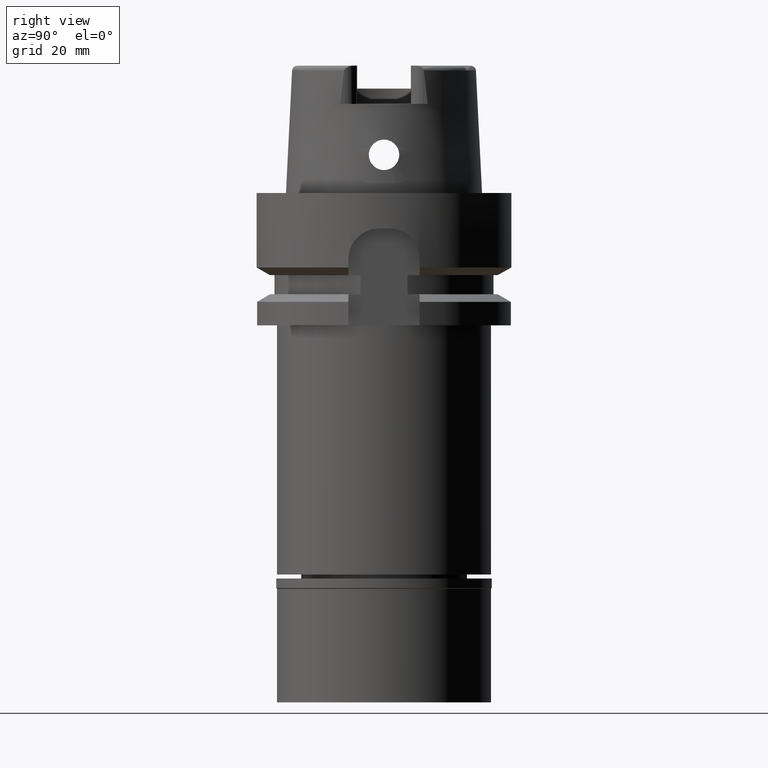
[diagram: clean part render]
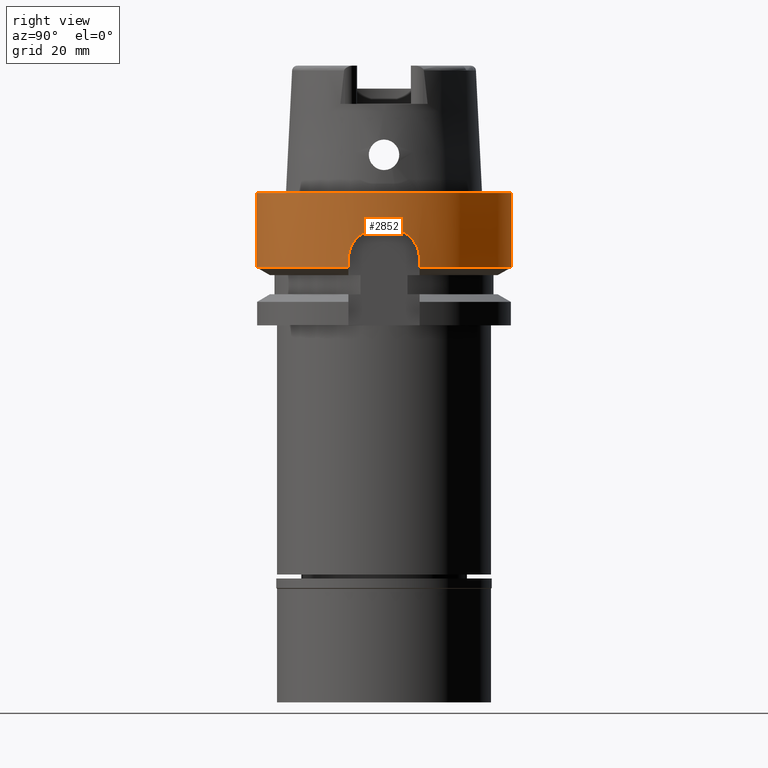
[diagram: same view with one face highlighted and labeled with its STEP entity id]
A machine part, right view. The second image highlights one B-rep face of the part: STEP entity #2852.
In plain terms, the highlighted cylindrical surface (partial cylindrical patch) has radius 25 mm, axis along (0, 0, 1).
Its self-contained STEP definition (entity closure, byte-faithful):
#19 = CARTESIAN_POINT ( 'NONE',  ( 24.00000000000000000, -7.000000000000000000, -13.00000000000000000 ) ) ;
#24 = CARTESIAN_POINT ( 'NONE',  ( 24.73294308576608813, 3.644859767167603959, -7.613589877150551466 ) ) ;
#53 = CARTESIAN_POINT ( 'NONE',  ( 24.10752801693980629, 6.620997962007402649, -10.90026572787551551 ) ) ;
#61 = CARTESIAN_POINT ( 'NONE',  ( 24.30529649366753375, -5.862537617366315068, -9.462845734824883337 ) ) ;
#77 = CARTESIAN_POINT ( 'NONE',  ( 24.58607127543462667, 4.529312725726160060, -8.147360616397545385 ) ) ;
#96 = VERTEX_POINT ( 'NONE', #3486 ) ;
#136 = ORIENTED_EDGE ( 'NONE', *, *, #2641, .F. ) ;
#146 = CARTESIAN_POINT ( 'NONE',  ( 0.0000000000000000000, 25.00000000000000000, -14.62250092523999889 ) ) ;
#155 = ORIENTED_EDGE ( 'NONE', *, *, #1759, .T. ) ;
#224 = DIRECTION ( 'NONE',  ( 0.0000000000000000000, -2.721175632404000057E-14, -1.000000000000000000 ) ) ;
#301 = DIRECTION ( 'NONE',  ( 0.9599999999999999645, 0.2800000000000000266, 0.0000000000000000000 ) ) ;
#372 = ORIENTED_EDGE ( 'NONE', *, *, #3256, .T. ) ;
#414 = CARTESIAN_POINT ( 'NONE',  ( 24.43460421793000137, 5.286843905560941970, -8.802015659606345466 ) ) ;
#440 = CARTESIAN_POINT ( 'NONE',  ( 24.61244496257783254, 4.384881170344420376, -8.045937147886396801 ) ) ;
#451 = CARTESIAN_POINT ( 'NONE',  ( 24.13159849589857942, -6.532380329975212341, -10.67773505898725261 ) ) ;
#472 = CARTESIAN_POINT ( 'NONE',  ( 24.77466861489971706, 3.348472716446429853, -7.478687897367121806 ) ) ;
#503 = VERTEX_POINT ( 'NONE', #1666 ) ;
#527 = CARTESIAN_POINT ( 'NONE',  ( 24.61678101106502226, 4.360561431086801498, -8.029423866194205672 ) ) ;
#548 = CARTESIAN_POINT ( 'NONE',  ( 0.0000000000000000000, 25.00000000000000000, 0.0000000000000000000 ) ) ;
#613 = ORIENTED_EDGE ( 'NONE', *, *, #3111, .T. ) ;
#685 = ORIENTED_EDGE ( 'NONE', *, *, #752, .F. ) ;
#714 = DIRECTION ( 'NONE',  ( 0.0000000000000000000, 0.0000000000000000000, 1.000000000000000000 ) ) ;
#752 = EDGE_CURVE ( 'NONE', #4087, #4905, #1287, .T. ) ;
#758 = CARTESIAN_POINT ( 'NONE',  ( 24.94185023558227599, -1.739811273116883772, -7.033056774439122805 ) ) ;
#797 = B_SPLINE_CURVE_WITH_KNOTS ( 'NONE', 3,
 ( #3763, #3344, #758, #3295, #861, #2891, #1203, #4588, #803, #5421, #3321, #2922, #5367, #4619, #2424, #4126, #2476, #833, #3685, #3791, #4210, #2534, #2096, #5467, #2870, #4183, #1683, #2952, #1989, #1573, #1791, #3493, #2240, #3938, #2682, #2620, #1763, #61, #5201, #891, #3821, #1737, #1010, #3011, #5095, #451, #2595, #4732, #2980, #3906, #3432, #5116 ),
 .UNSPECIFIED., .F., .F.,
 ( 4, 2, 2, 1, 1, 1, 2, 2, 2, 2, 1, 1, 1, 1, 2, 2, 2, 2, 2, 1, 1, 2, 2, 2, 2, 2, 1, 1, 1, 2, 2, 4 ),
 ( 0.0000000000000000000, 0.1250000000000014433, 0.1875000000000022204, 0.2187500000000025813, 0.2343750000000028588, 0.2421875000000029976, 0.2460937500000030531, 0.2500000000000031086, 0.3125000000000030531, 0.3437500000000030531, 0.3593750000000031086, 0.3671875000000029976, 0.3710937500000029976, 0.3730468750000029976, 0.3740234375000031641, 0.3750000000000033307, 0.4374999999999915623, 0.4687499999999856226, 0.4843749999999828471, 0.4921874999999814038, 0.4960937499999805156, 0.4980468749999802380, 0.4999999999999799050, 0.6249999999999581446, 0.6874999999999470424, 0.7187499999999416023, 0.7343749999999383826, 0.7421874999999368283, 0.7460937499999366063, 0.7480468749999368283, 0.7499999999999370504, 1.000000000000000000 ),
 .UNSPECIFIED. ) ;
#803 = CARTESIAN_POINT ( 'NONE',  ( 24.79500069949984464, -3.194305551462114590, -7.415539722165973124 ) ) ;
#823 = CARTESIAN_POINT ( 'NONE',  ( 24.43751223333812916, 5.273372890266226243, -8.788314004694974813 ) ) ;
#826 = VECTOR ( 'NONE', #224, 1000.000000000000000 ) ;
#833 = CARTESIAN_POINT ( 'NONE',  ( 24.65101416016376135, -4.163011647230068668, -7.900938413457483378 ) ) ;
#852 = CARTESIAN_POINT ( 'NONE',  ( 24.19606051178250539, 6.297238694292412120, -10.15515967838391198 ) ) ;
#861 = CARTESIAN_POINT ( 'NONE',  ( 24.87425935198875138, -2.506584891742007493, -7.188740180381780753 ) ) ;
#880 = CARTESIAN_POINT ( 'NONE',  ( 24.43634820577575439, 5.278767043177952090, -8.793794183290007282 ) ) ;
#891 = CARTESIAN_POINT ( 'NONE',  ( 24.20247363195075962, -6.268711443944487982, -10.12424634731129025 ) ) ;
#912 = CARTESIAN_POINT ( 'NONE',  ( 24.40662219008332201, 5.415271313888168514, -8.936539479565579924 ) ) ;
#939 = CARTESIAN_POINT ( 'NONE',  ( 24.61482510374747079, 4.371564182871710891, -8.036877273735983707 ) ) ;
#1010 = CARTESIAN_POINT ( 'NONE',  ( 24.14842663893804087, -6.470323879109859178, -10.53481904906633559 ) ) ;
#1063 = EDGE_CURVE ( 'NONE', #1197, #1855, #2577, .T. ) ;
#1079 = CARTESIAN_POINT ( 'NONE',  ( 0.0000000000000000000, 0.0000000000000000000, -14.62250092523999889 ) ) ;
#1197 = VERTEX_POINT ( 'NONE', #548 ) ;
#1203 = CARTESIAN_POINT ( 'NONE',  ( 24.82647029888361701, -2.941155774179531335, -7.321066971503248588 ) ) ;
#1244 = CARTESIAN_POINT ( 'NONE',  ( 24.75999708074224159, 3.455767875607982820, -7.525262572117729754 ) ) ;
#1274 = CARTESIAN_POINT ( 'NONE',  ( 24.77670713647603407, 3.333308852748606999, -7.472278970346565963 ) ) ;
#1287 = B_SPLINE_CURVE_WITH_KNOTS ( 'NONE', 3,
 ( #5294, #1753, #2999, #5024, #3450, #1702, #3868, #53, #1671, #3396, #3036, #4665, #2523, #2969, #852, #4722, #4608, #2148, #2614, #4690, #912, #3779, #5132, #414, #880, #823, #1729, #3426, #2490, #1351, #77, #5462, #2548, #4226, #440, #939, #4252, #5109, #5052, #527, #2111, #3806, #1325, #4635, #24, #5084, #1244, #2199, #472, #1274, #4304, #5437, #1644, #2910, #2584 ),
 .UNSPECIFIED., .F., .F.,
 ( 4, 2, 2, 1, 1, 1, 1, 2, 2, 2, 2, 2, 1, 1, 1, 1, 2, 2, 2, 2, 2, 1, 1, 1, 1, 2, 2, 2, 2, 1, 1, 1, 2, 2, 4 ),
 ( 0.0000000000000000000, 0.1249999999999592548, 0.1874999999999391043, 0.2187499999999290845, 0.2343749999999242550, 0.2421874999999217293, 0.2460937499999206468, 0.2480468749999200639, 0.2499999999999194533, 0.3749999999998808731, 0.4374999999998614997, 0.4687499999998517852, 0.4843749999998470113, 0.4921874999998446243, 0.4960937499998435696, 0.4980468749998431810, 0.4990234374998431255, 0.4999999999998430145, 0.5624999999998251399, 0.5937499999998161471, 0.6093749999998112621, 0.6171874999998089306, 0.6210937499998073763, 0.6230468749998073763, 0.6240234374998078204, 0.6245117187498081535, 0.6249999999998085976, 0.6874999999998400169, 0.7187499999998558931, 0.7343749999998637756, 0.7421874999998675504, 0.7460937499998693268, 0.7480468749998703260, 0.7499999999998712141, 1.000000000000000000 ),
 .UNSPECIFIED. ) ;
#1325 = CARTESIAN_POINT ( 'NONE',  ( 24.67948136265665582, 3.993933429282845893, -7.796559781970162639 ) ) ;
#1351 = CARTESIAN_POINT ( 'NONE',  ( 24.57381445909672379, 4.595186186877212364, -8.195383157268466334 ) ) ;
#1370 = DIRECTION ( 'NONE',  ( 1.953628509122914217E-07, -6.698161828876706953E-07, 0.9999999999997566391 ) ) ;
#1401 = CYLINDRICAL_SURFACE ( 'NONE', #3291, 25.00000000000000000 ) ;
#1521 = CARTESIAN_POINT ( 'NONE',  ( 24.97999199359000144, -1.000000000000000000, -7.000000000000000000 ) ) ;
#1534 = CARTESIAN_POINT ( 'NONE',  ( 0.0000000000000000000, -25.00000000000000000, 0.0000000000000000000 ) ) ;
#1573 = CARTESIAN_POINT ( 'NONE',  ( 24.49021585929427403, -5.022524553169382955, -8.547542770248069743 ) ) ;
#1639 = DIRECTION ( 'NONE',  ( 0.0000000000000000000, 2.721175632404000057E-14, -1.000000000000000000 ) ) ;
#1644 = CARTESIAN_POINT ( 'NONE',  ( 24.88364757977979380, 2.531959393166731243, -7.137416240331033279 ) ) ;
#1652 = CARTESIAN_POINT ( 'NONE',  ( 0.0000000000000000000, 0.0000000000000000000, -14.62250092523999889 ) ) ;
#1666 = CARTESIAN_POINT ( 'NONE',  ( 0.0000000000000000000, -25.00000000000000000, -14.62250092523999889 ) ) ;
#1671 = CARTESIAN_POINT ( 'NONE',  ( 24.11623053082026757, 6.589023799846352780, -10.81735361996364730 ) ) ;
#1683 = CARTESIAN_POINT ( 'NONE',  ( 24.54654578075406235, -4.738676856067016274, -8.306173812209182827 ) ) ;
#1700 = DIRECTION ( 'NONE',  ( 3.913553792547921141E-08, 1.341781313325972781E-07, -0.9999999999999902300 ) ) ;
#1702 = CARTESIAN_POINT ( 'NONE',  ( 24.07826148314043380, 6.727455741497216479, -11.20943159318373006 ) ) ;
#1705 = AXIS2_PLACEMENT_3D ( 'NONE', #3299, #2874, #4569 ) ;
#1729 = CARTESIAN_POINT ( 'NONE',  ( 24.43788954521727774, 5.271623935324042165, -8.786538707345096455 ) ) ;
#1737 = CARTESIAN_POINT ( 'NONE',  ( 24.16180008781338273, -6.420924016954203672, -10.42709800901161721 ) ) ;
#1753 = CARTESIAN_POINT ( 'NONE',  ( 24.00000000000000000, 7.000000000000001776, -12.63385984748206248 ) ) ;
#1759 = EDGE_CURVE ( 'NONE', #503, #4227, #3294, .T. ) ;
#1763 = CARTESIAN_POINT ( 'NONE',  ( 24.36959338859111668, -5.590577580099308719, -9.104356581277798455 ) ) ;
#1791 = CARTESIAN_POINT ( 'NONE',  ( 24.47402225903395490, -5.100991898207478670, -8.620144381176270798 ) ) ;
#1855 = VERTEX_POINT ( 'NONE', #146 ) ;
#1989 = CARTESIAN_POINT ( 'NONE',  ( 24.50044862749572161, -4.972045919615666776, -8.502563082244634529 ) ) ;
#2083 = VERTEX_POINT ( 'NONE', #1521 ) ;
#2091 = CARTESIAN_POINT ( 'NONE',  ( 0.0000000000000000000, 0.0000000000000000000, 0.0000000000000000000 ) ) ;
#2096 = CARTESIAN_POINT ( 'NONE',  ( 24.62438257765726490, -4.317398151281207852, -8.000511889818096023 ) ) ;
#2111 = CARTESIAN_POINT ( 'NONE',  ( 24.61666591321231223, 4.361211313614593799, -8.029863026930074810 ) ) ;
#2118 = CARTESIAN_POINT ( 'NONE',  ( 24.00000006349999992, -6.999999782296000284, -14.62250271605000052 ) ) ;
#2148 = CARTESIAN_POINT ( 'NONE',  ( 24.35094448770101039, 5.662783105236496084, -9.222342518793061217 ) ) ;
#2187 = LINE ( 'NONE', #5153, #4175 ) ;
#2194 = CARTESIAN_POINT ( 'NONE',  ( 0.0000000000000000000, 0.0000000000000000000, -98.37500000000000000 ) ) ;
#2199 = CARTESIAN_POINT ( 'NONE',  ( 24.76985465268024456, 3.384020467863319226, -7.493884706707670595 ) ) ;
#2225 = DIRECTION ( 'NONE',  ( 0.0000000000000000000, 0.0000000000000000000, 1.000000000000000000 ) ) ;
#2229 = ORIENTED_EDGE ( 'NONE', *, *, #3093, .T. ) ;
#2240 = CARTESIAN_POINT ( 'NONE',  ( 24.45565233679289818, -5.188584022173250432, -8.703907517152154938 ) ) ;
#2424 = CARTESIAN_POINT ( 'NONE',  ( 24.69856182429064972, -3.871095718298669386, -7.730601826457805359 ) ) ;
#2472 = CIRCLE ( 'NONE', #3016, 25.00000000000000000 ) ;
#2476 = CARTESIAN_POINT ( 'NONE',  ( 24.66234382427868255, -4.095064815482102993, -7.859639446773741156 ) ) ;
#2478 = VERTEX_POINT ( 'NONE', #4999 ) ;
#2490 = CARTESIAN_POINT ( 'NONE',  ( 24.52925373160936928, 4.828896976333145297, -8.376324531315392008 ) ) ;
#2523 = CARTESIAN_POINT ( 'NONE',  ( 24.12475253472283754, 6.557610589587649308, -10.73880887821437113 ) ) ;
#2534 = CARTESIAN_POINT ( 'NONE',  ( 24.62538851074648605, -4.311657320428481377, -7.996707319172039696 ) ) ;
#2548 = CARTESIAN_POINT ( 'NONE',  ( 24.60474219925521311, 4.427535729229963302, -8.075310994153575450 ) ) ;
#2577 = LINE ( 'NONE', #4275, #3213 ) ;
#2584 = CARTESIAN_POINT ( 'NONE',  ( 24.97999199359000144, 1.000000000000000000, -7.000000000000000000 ) ) ;
#2595 = CARTESIAN_POINT ( 'NONE',  ( 24.13017009503518295, -6.537658886236325628, -10.69037778009140638 ) ) ;
#2614 = CARTESIAN_POINT ( 'NONE',  ( 24.36750995487977178, 5.590378506255056834, -9.134498803794857125 ) ) ;
#2620 = CARTESIAN_POINT ( 'NONE',  ( 24.44652763311228583, -5.231421486178861713, -8.746162543681107238 ) ) ;
#2641 = EDGE_CURVE ( 'NONE', #96, #4087, #2187, .T. ) ;
#2682 = CARTESIAN_POINT ( 'NONE',  ( 24.44831564904696464, -5.223056861750493773, -8.737854408938241946 ) ) ;
#2800 = EDGE_CURVE ( 'NONE', #2998, #4227, #2939, .T. ) ;
#2852 = ADVANCED_FACE ( 'NONE', ( #4807 ), #1401, .T. ) ;
#2865 = CARTESIAN_POINT ( 'NONE',  ( 24.00000000000000000, 7.000000000000000000, -13.00000000000000000 ) ) ;
#2870 = CARTESIAN_POINT ( 'NONE',  ( 24.61171775260974570, -4.389522974790301291, -8.048486046826221596 ) ) ;
#2874 = DIRECTION ( 'NONE',  ( 0.0000000000000000000, 0.0000000000000000000, 1.000000000000000000 ) ) ;
#2891 = CARTESIAN_POINT ( 'NONE',  ( 24.84296631259018540, -2.796227063490334785, -7.274294539694823314 ) ) ;
#2910 = CARTESIAN_POINT ( 'NONE',  ( 24.95050956832550426, 1.736470747166631856, -6.999999999999995559 ) ) ;
#2922 = CARTESIAN_POINT ( 'NONE',  ( 24.78534473578982400, -3.268441429233065687, -7.445336015415985109 ) ) ;
#2939 = LINE ( 'NONE', #19, #3129 ) ;
#2952 = CARTESIAN_POINT ( 'NONE',  ( 24.52945803618378662, -4.826938751420060569, -8.377133977738838055 ) ) ;
#2969 = CARTESIAN_POINT ( 'NONE',  ( 24.15503202434247498, 6.445803977006846708, -10.46460447768306246 ) ) ;
#2980 = CARTESIAN_POINT ( 'NONE',  ( 24.12895328656719585, -6.542157197441434313, -10.70118825429738152 ) ) ;
#2998 = VERTEX_POINT ( 'NONE', #3588 ) ;
#2999 = CARTESIAN_POINT ( 'NONE',  ( 24.01043486441871977, 6.966396845538230131, -12.25702735792319231 ) ) ;
#3011 = CARTESIAN_POINT ( 'NONE',  ( 24.14200836166837760, -6.493980026962795193, -10.58780674292788859 ) ) ;
#3016 = AXIS2_PLACEMENT_3D ( 'NONE', #2091, #4559, #3314 ) ;
#3036 = CARTESIAN_POINT ( 'NONE',  ( 24.12262239479160186, 6.565471226272853400, -10.75822154439199174 ) ) ;
#3093 = EDGE_CURVE ( 'NONE', #2478, #503, #4012, .T. ) ;
#3111 = EDGE_CURVE ( 'NONE', #96, #1855, #4453, .T. ) ;
#3129 = VECTOR ( 'NONE', #1700, 1000.000000000000000 ) ;
#3213 = VECTOR ( 'NONE', #1639, 1000.000000000000000 ) ;
#3256 = EDGE_CURVE ( 'NONE', #2083, #4905, #3385, .T. ) ;
#3291 = AXIS2_PLACEMENT_3D ( 'NONE', #2194, #2225, #3922 ) ;
#3294 = CIRCLE ( 'NONE', #4361, 25.00000000000000000 ) ;
#3295 = CARTESIAN_POINT ( 'NONE',  ( 24.89285606090169622, -2.313787954208836428, -7.142364448380200237 ) ) ;
#3299 = CARTESIAN_POINT ( 'NONE',  ( 0.0000000000000000000, 0.0000000000000000000, -7.000000000000000000 ) ) ;
#3314 = DIRECTION ( 'NONE',  ( 0.0000000000000000000, 1.000000000000000000, 0.0000000000000000000 ) ) ;
#3321 = CARTESIAN_POINT ( 'NONE',  ( 24.78718052859316145, -3.254464450684817933, -7.439644054169254339 ) ) ;
#3344 = CARTESIAN_POINT ( 'NONE',  ( 24.96545174929164901, -1.363215186136362389, -7.000000000000000000 ) ) ;
#3345 = EDGE_LOOP ( 'NONE', ( #372, #685, #136, #613, #4181, #4218, #2229, #155, #4581, #4706 ) ) ;
#3373 = DIRECTION ( 'NONE',  ( 0.0000000000000000000, -1.000000000000000000, 0.0000000000000000000 ) ) ;
#3385 = CIRCLE ( 'NONE', #1705, 25.00000000000001066 ) ;
#3396 = CARTESIAN_POINT ( 'NONE',  ( 24.12068878588198828, 6.572602298857814773, -10.77595244455780410 ) ) ;
#3426 = CARTESIAN_POINT ( 'NONE',  ( 24.48915954198627176, 5.033751716452870895, -8.545801110986628757 ) ) ;
#3432 = CARTESIAN_POINT ( 'NONE',  ( 24.00000000000000355, -7.000000000000000888, -12.25954671733727963 ) ) ;
#3450 = CARTESIAN_POINT ( 'NONE',  ( 24.05478303819830543, 6.811724703876588904, -11.49554198212696043 ) ) ;
#3486 = CARTESIAN_POINT ( 'NONE',  ( 23.99999968302999775, 7.000001086771000303, -14.62249198540999906 ) ) ;
#3493 = CARTESIAN_POINT ( 'NONE',  ( 24.46571434691423264, -5.140911880149471536, -8.657728510230832342 ) ) ;
#3574 = EDGE_CURVE ( 'NONE', #2083, #2998, #797, .T. ) ;
#3588 = CARTESIAN_POINT ( 'NONE',  ( 24.00000000000000000, -7.000000000000000000, -13.00000000000000000 ) ) ;
#3685 = CARTESIAN_POINT ( 'NONE',  ( 24.63734485081030812, -4.242896415407003019, -7.951740609898149792 ) ) ;
#3737 = DIRECTION ( 'NONE',  ( 0.0000000000000000000, 0.0000000000000000000, 1.000000000000000000 ) ) ;
#3763 = CARTESIAN_POINT ( 'NONE',  ( 24.97999199359000144, -1.000000000000000000, -7.000000000000000000 ) ) ;
#3779 = CARTESIAN_POINT ( 'NONE',  ( 24.42249692440321951, 5.342680383500566066, -8.859619721633551492 ) ) ;
#3791 = CARTESIAN_POINT ( 'NONE',  ( 24.63039735416208487, -4.282976120853808411, -7.977809557300775900 ) ) ;
#3806 = CARTESIAN_POINT ( 'NONE',  ( 24.64960104968674770, 4.175295883947886644, -7.904210411189589003 ) ) ;
#3821 = CARTESIAN_POINT ( 'NONE',  ( 24.17143157951167964, -6.385208071175521027, -10.35295374657486178 ) ) ;
#3868 = CARTESIAN_POINT ( 'NONE',  ( 24.09097897415073675, 6.681486138015525711, -11.06647711585083016 ) ) ;
#3906 = CARTESIAN_POINT ( 'NONE',  ( 24.04276171160778475, -6.861034943977044165, -11.47231202780126758 ) ) ;
#3922 = DIRECTION ( 'NONE',  ( 0.0000000000000000000, 1.000000000000000000, 0.0000000000000000000 ) ) ;
#3938 = CARTESIAN_POINT ( 'NONE',  ( 24.45126087974481877, -5.209238687356353203, -8.724207211539866336 ) ) ;
#4012 = LINE ( 'NONE', #1534, #826 ) ;
#4087 = VERTEX_POINT ( 'NONE', #2865 ) ;
#4095 = EDGE_CURVE ( 'NONE', #1197, #2478, #2472, .T. ) ;
#4126 = CARTESIAN_POINT ( 'NONE',  ( 24.68448730349595266, -3.960010261498092099, -7.779916612866696113 ) ) ;
#4175 = VECTOR ( 'NONE', #1370, 1000.000000000000000 ) ;
#4181 = ORIENTED_EDGE ( 'NONE', *, *, #1063, .F. ) ;
#4183 = CARTESIAN_POINT ( 'NONE',  ( 24.59105343079966488, -4.504464815080321038, -8.125827042359679453 ) ) ;
#4210 = CARTESIAN_POINT ( 'NONE',  ( 24.62689539534509109, -4.303048270488925908, -7.991012587978536530 ) ) ;
#4218 = ORIENTED_EDGE ( 'NONE', *, *, #4095, .T. ) ;
#4226 = CARTESIAN_POINT ( 'NONE',  ( 24.61003967227181732, 4.398243530440542948, -8.055095384875235354 ) ) ;
#4227 = VERTEX_POINT ( 'NONE', #2118 ) ;
#4252 = CARTESIAN_POINT ( 'NONE',  ( 24.61590866661879318, 4.365476426582466374, -8.032749694666966533 ) ) ;
#4275 = CARTESIAN_POINT ( 'NONE',  ( 0.0000000000000000000, 25.00000000000000000, 0.0000000000000000000 ) ) ;
#4304 = CARTESIAN_POINT ( 'NONE',  ( 24.77806068306264820, 3.323215476375601884, -7.468029299217437078 ) ) ;
#4361 = AXIS2_PLACEMENT_3D ( 'NONE', #1652, #3737, #3373 ) ;
#4453 = CIRCLE ( 'NONE', #5243, 25.00000000000000000 ) ;
#4559 = DIRECTION ( 'NONE',  ( 0.0000000000000000000, 0.0000000000000000000, -1.000000000000000000 ) ) ;
#4569 = DIRECTION ( 'NONE',  ( 0.9991996797437435740, -0.04000000000000173556, 0.0000000000000000000 ) ) ;
#4581 = ORIENTED_EDGE ( 'NONE', *, *, #2800, .F. ) ;
#4588 = CARTESIAN_POINT ( 'NONE',  ( 24.80573833504655568, -3.109999917822938276, -7.382833471976328887 ) ) ;
#4608 = CARTESIAN_POINT ( 'NONE',  ( 24.30335086793762045, 5.866946322327684094, -9.484064445588968439 ) ) ;
#4619 = CARTESIAN_POINT ( 'NONE',  ( 24.73872199062435584, -3.608709071987773243, -7.593186898220010583 ) ) ;
#4635 = CARTESIAN_POINT ( 'NONE',  ( 24.72010256355792635, 3.730999542989645423, -7.656639786933012282 ) ) ;
#4665 = CARTESIAN_POINT ( 'NONE',  ( 24.12391656254666472, 6.560696426166714446, -10.74640379159974657 ) ) ;
#4690 = CARTESIAN_POINT ( 'NONE',  ( 24.39340954653438942, 5.474801672781931750, -9.002554744414132060 ) ) ;
#4706 = ORIENTED_EDGE ( 'NONE', *, *, #3574, .F. ) ;
#4722 = CARTESIAN_POINT ( 'NONE',  ( 24.27442549712591457, 5.985645042804916827, -9.656079087791530569 ) ) ;
#4732 = CARTESIAN_POINT ( 'NONE',  ( 24.12922342044225132, -6.541158518188714410, -10.69878662108175860 ) ) ;
#4807 = FACE_OUTER_BOUND ( 'NONE', #3345, .T. ) ;
#4905 = VERTEX_POINT ( 'NONE', #5021 ) ;
#4999 = CARTESIAN_POINT ( 'NONE',  ( 0.0000000000000000000, -25.00000000000000000, 0.0000000000000000000 ) ) ;
#5021 = CARTESIAN_POINT ( 'NONE',  ( 24.97999199359000144, 1.000000000000000000, -7.000000000000000000 ) ) ;
#5024 = CARTESIAN_POINT ( 'NONE',  ( 24.04173945767488974, 6.857670578406594331, -11.68654261157792362 ) ) ;
#5052 = CARTESIAN_POINT ( 'NONE',  ( 24.61663889585882714, 4.361362984970365453, -8.029965883684598182 ) ) ;
#5084 = CARTESIAN_POINT ( 'NONE',  ( 24.75115405193992046, 3.518349372295006106, -7.553892147694778458 ) ) ;
#5095 = CARTESIAN_POINT ( 'NONE',  ( 24.13499015406451420, -6.519858338427475530, -10.64803009894670183 ) ) ;
#5109 = CARTESIAN_POINT ( 'NONE',  ( 24.61642382112606953, 4.362575545624703288, -8.030786039352079797 ) ) ;
#5116 = CARTESIAN_POINT ( 'NONE',  ( 24.00000000000000000, -7.000000000000000000, -13.00000000000000000 ) ) ;
#5132 = CARTESIAN_POINT ( 'NONE',  ( 24.43054928744136589, 5.305589509801061254, -8.821207196570934883 ) ) ;
#5153 = CARTESIAN_POINT ( 'NONE',  ( 23.99999968302999775, 7.000001086771000303, -14.62249198540999906 ) ) ;
#5201 = CARTESIAN_POINT ( 'NONE',  ( 24.22603177003575325, -6.178584438752884544, -9.963357725267311338 ) ) ;
#5243 = AXIS2_PLACEMENT_3D ( 'NONE', #1079, #714, #301 ) ;
#5294 = CARTESIAN_POINT ( 'NONE',  ( 24.00000000000000000, 7.000000000000000000, -13.00000000000000000 ) ) ;
#5367 = CARTESIAN_POINT ( 'NONE',  ( 24.76274424011295849, -3.439636156422484436, -7.515612040056356413 ) ) ;
#5421 = CARTESIAN_POINT ( 'NONE',  ( 24.79031921563091956, -3.230405450063938311, -7.429949754978684595 ) ) ;
#5437 = CARTESIAN_POINT ( 'NONE',  ( 24.77859164082922305, 3.319248975572676841, -7.466363949574577497 ) ) ;
#5462 = CARTESIAN_POINT ( 'NONE',  ( 24.60056136070467403, 4.450489384297338091, -8.091317657999558932 ) ) ;
#5467 = CARTESIAN_POINT ( 'NONE',  ( 24.62355676823477069, -4.322103950345934642, -8.003638634470327418 ) ) ;